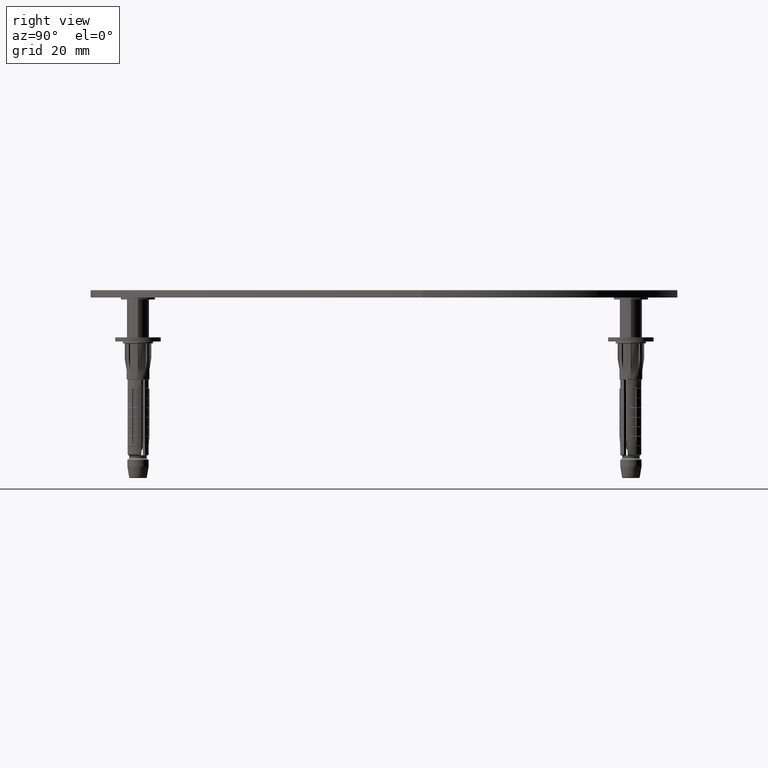
[diagram: clean part render]
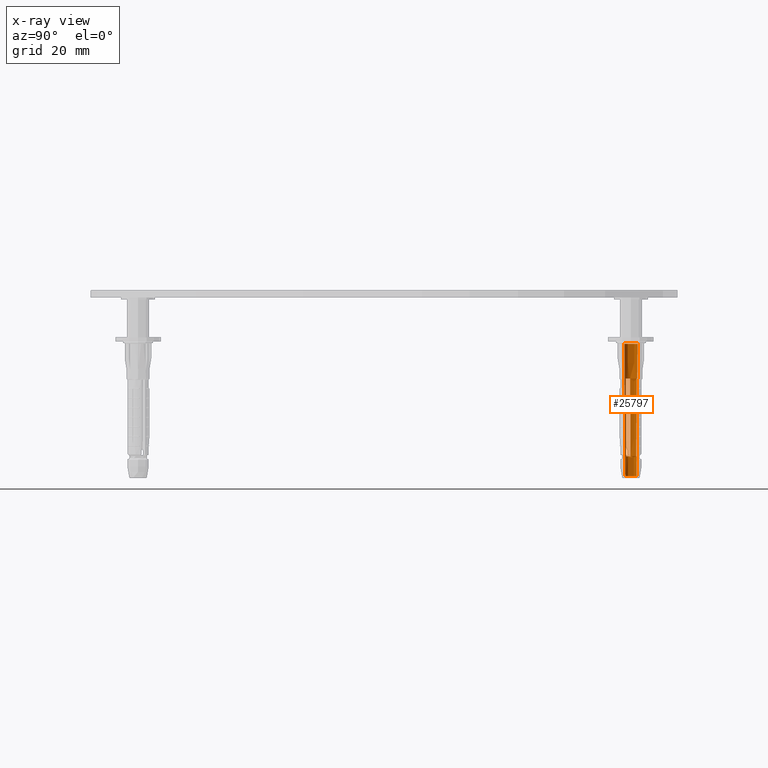
[diagram: x-ray — body ghosted, one internal face saturated and labeled with its STEP entity id]
A machine part, right view, then the same camera in x-ray: the body is ghosted and one INTERNAL B-rep face — a face not visible from any outside direction — is saturated and labeled: STEP entity #25797.
In plain terms, the highlighted conical surface has half-angle 0.401 deg.
Its self-contained STEP definition (entity closure, byte-faithful):
#411 = CARTESIAN_POINT ( 'NONE',  ( 1.836970198721029934E-16, 1.500000000000000000, -35.75000000000000000 ) ) ;
#661 = EDGE_CURVE ( 'NONE', #5708, #35858, #10260, .T. ) ;
#897 = AXIS2_PLACEMENT_3D ( 'NONE', #6023, #27391, #3202 ) ;
#962 = ORIENTED_EDGE ( 'NONE', *, *, #32297, .T. ) ;
#993 = CIRCLE ( 'NONE', #897, 1.681830407055966425 ) ;
#1470 = VERTEX_POINT ( 'NONE', #8237 ) ;
#1724 = EDGE_CURVE ( 'NONE', #9531, #27841, #3053, .T. ) ;
#1904 = DIRECTION ( 'NONE',  ( 0.000000000000000000, -0.006992836012750656971, 0.9999755498233438011 ) ) ;
#2013 = CARTESIAN_POINT ( 'NONE',  ( 0.6452325289770389771, -1.397914218517826157, -30.08158984277008585 ) ) ;
#2674 = CARTESIAN_POINT ( 'NONE',  ( 1.599003518319578987, 0.1736583543094187554, -20.24795912438024814 ) ) ;
#2736 = ORIENTED_EDGE ( 'NONE', *, *, #5259, .T. ) ;
#2937 = CARTESIAN_POINT ( 'NONE',  ( 1.666526010379683731, 0.2083499647477308481, -10.08157587699704649 ) ) ;
#2938 = CARTESIAN_POINT ( 'NONE',  ( 0.000000000000000000, 3.433350391091640607E-16, -9.748251790996814492 ) ) ;
#2979 = LINE ( 'NONE', #411, #29708 ) ;
#3031 = VERTEX_POINT ( 'NONE', #11512 ) ;
#3053 = LINE ( 'NONE', #36978, #23088 ) ;
#3202 = DIRECTION ( 'NONE',  ( -1.776356839400250465E-15, -1.000000000000000000, 0.000000000000000000 ) ) ;
#3253 = CARTESIAN_POINT ( 'NONE',  ( 0.9027115561000608190, 1.267324053805257256, -27.74832246951416082 ) ) ;
#3386 = CIRCLE ( 'NONE', #24115, 1.538473763699323094 ) ;
#4185 = DIRECTION ( 'NONE',  ( 0.000000000000000000, 1.712792726080124458E-19, 1.000000000000000000 ) ) ;
#4724 = CARTESIAN_POINT ( 'NONE',  ( 0.000000000000000000, -6.123233995736444329E-18, -35.75000000000000000 ) ) ;
#4959 = CARTESIAN_POINT ( 'NONE',  ( 0.6529438566827530099, -1.549908977365538787, -9.748251790996814492 ) ) ;
#5259 = EDGE_CURVE ( 'NONE', #29606, #3031, #28714, .T. ) ;
#5265 = EDGE_CURVE ( 'NONE', #27841, #29606, #3386, .T. ) ;
#5385 = DIRECTION ( 'NONE',  ( 0.000000000000000000, 1.712792726080124458E-19, 1.000000000000000000 ) ) ;
#5708 = VERTEX_POINT ( 'NONE', #9846 ) ;
#5759 = DIRECTION ( 'NONE',  ( 0.000000000000000000, 6.803593328596413297E-18, 1.000000000000000000 ) ) ;
#6023 = CARTESIAN_POINT ( 'NONE',  ( 0.000000000000000000, 3.433350391091640607E-16, -9.748251790996814492 ) ) ;
#6074 = DIRECTION ( 'NONE',  ( 8.563754239977431897E-19, 0.006992836012750656971, 0.9999755498233438011 ) ) ;
#6116 = VERTEX_POINT ( 'NONE', #11631 ) ;
#6214 = FACE_OUTER_BOUND ( 'NONE', #23349, .T. ) ;
#7004 = CARTESIAN_POINT ( 'NONE',  ( 0.9948955139307371631, 1.327005492811487386, -13.08168407891747087 ) ) ;
#7264 = CARTESIAN_POINT ( 'NONE',  ( 0.8880129610593886502, 1.257744870701107631, -30.08158984277008585 ) ) ;
#8229 = CIRCLE ( 'NONE', #30391, 1.745783028158170325 ) ;
#8237 = CARTESIAN_POINT ( 'NONE',  ( 0.000000000000000000, -1.681830407055966203, -9.748251790996814492 ) ) ;
#8298 = CARTESIAN_POINT ( 'NONE',  ( 0.6461790473723990624, -1.415433166775063034, -27.74832246951416082 ) ) ;
#8302 = EDGE_CURVE ( 'NONE', #31300, #9531, #29854, .T. ) ;
#9161 = ORIENTED_EDGE ( 'NONE', *, *, #19365, .T. ) ;
#9531 = VERTEX_POINT ( 'NONE', #16568 ) ;
#9846 = CARTESIAN_POINT ( 'NONE',  ( 1.532126853353173113, 0.1396023883222116124, -30.24825179099680739 ) ) ;
#9938 = DIRECTION ( 'NONE',  ( 0.000000000000000000, -1.000000000000000000, 0.000000000000000000 ) ) ;
#10032 = CARTESIAN_POINT ( 'NONE',  ( 1.015788619610740406, 1.340420455815019229, -9.748251790996814492 ) ) ;
#10260 = CIRCLE ( 'NONE', #22212, 1.538473763699323094 ) ;
#11160 = EDGE_CURVE ( 'NONE', #31300, #37635, #2979, .T. ) ;
#11191 = CARTESIAN_POINT ( 'NONE',  ( 0.6472510597482427075, -1.435442561835776898, -25.08173108936442475 ) ) ;
#11477 = DIRECTION ( 'NONE',  ( 0.000000000000000000, -1.000000000000000000, 0.000000000000000000 ) ) ;
#11512 = CARTESIAN_POINT ( 'NONE',  ( 0.6529438566827530099, -1.549908977365538787, -9.748251790996814492 ) ) ;
#11631 = CARTESIAN_POINT ( 'NONE',  ( 0.000000000000000000, -1.745783028158170547, -0.6030269733816054911 ) ) ;
#12314 = DIRECTION ( 'NONE',  ( 0.000000000000000000, -0.006992836012750656971, 0.9999755498233438011 ) ) ;
#13439 = VERTEX_POINT ( 'NONE', #36412 ) ;
#13507 = DIRECTION ( 'NONE',  ( -0.000000000000000000, -1.712792726080124458E-19, -1.000000000000000000 ) ) ;
#13860 = CARTESIAN_POINT ( 'NONE',  ( 0.6456409658520689820, -1.405425853955954318, -29.08161813890516356 ) ) ;
#14137 = CARTESIAN_POINT ( 'NONE',  ( 0.6492984556952973163, -1.475339807804667336, -19.74854737969049623 ) ) ;
#14614 = ORIENTED_EDGE ( 'NONE', *, *, #661, .T. ) ;
#14667 = CARTESIAN_POINT ( 'NONE',  ( 1.532126853353173113, 0.1396023883222116124, -30.24825179099680739 ) ) ;
#15589 = DIRECTION ( 'NONE',  ( 1.776356839400250465E-15, 1.000000000000000000, 0.000000000000000000 ) ) ;
#16421 = LINE ( 'NONE', #38266, #34560 ) ;
#16568 = CARTESIAN_POINT ( 'NONE',  ( 0.000000000000000000, -1.501736026510467337, -35.50174820900318196 ) ) ;
#17291 = B_SPLINE_CURVE_WITH_KNOTS ( 'NONE', 3,
 ( #36680, #7264, #25282, #21495, #28604, #31653, #3253, #34568, #18473, #19281, #30734, #7004, #10032 ),
 .UNSPECIFIED., .F., .F.,
 ( 4, 3, 3, 3, 4 ),
 ( 0.000000000000000000, 0.0005000000000004143925, 0.002500000000050580685, 0.01050000000305951336, 0.02050057427464647627 ),
 .UNSPECIFIED. ) ;
#17498 = CARTESIAN_POINT ( 'NONE',  ( 0.000000000000000000, -5.180898564425945676E-18, -30.24825179099682870 ) ) ;
#17522 = ORIENTED_EDGE ( 'NONE', *, *, #38513, .T. ) ;
#18154 = CARTESIAN_POINT ( 'NONE',  ( 1.667629327064346967, 0.2089192303041016996, -9.914913834507210311 ) ) ;
#18373 = CARTESIAN_POINT ( 'NONE',  ( 0.000000000000000000, -1.538473763699322872, -30.24825179099682870 ) ) ;
#18473 = CARTESIAN_POINT ( 'NONE',  ( 0.9362772196692720206, 1.289140595316773386, -22.41513938176526111 ) ) ;
#18870 = CARTESIAN_POINT ( 'NONE',  ( 2.137967597439677086E-16, 1.745783028158170547, -0.6030269733816054911 ) ) ;
#19281 = CARTESIAN_POINT ( 'NONE',  ( 0.9530325249256442754, 1.299978861172466083, -19.74854737969049623 ) ) ;
#19365 = EDGE_CURVE ( 'NONE', #1470, #6116, #16421, .T. ) ;
#19565 = FACE_BOUND ( 'NONE', #30756, .T. ) ;
#19647 = ORIENTED_EDGE ( 'NONE', *, *, #25305, .T. ) ;
#20034 = CARTESIAN_POINT ( 'NONE',  ( 0.6482898947594840644, -1.455410154876639606, -22.41513938176526111 ) ) ;
#20231 = AXIS2_PLACEMENT_3D ( 'NONE', #4724, #4185, #38528 ) ;
#20297 = DIRECTION ( 'NONE',  ( 0.000000000000000000, 1.000000000000000000, 0.000000000000000000 ) ) ;
#20362 = ORIENTED_EDGE ( 'NONE', *, *, #22916, .T. ) ;
#20800 = CARTESIAN_POINT ( 'NONE',  ( 1.665422525302646894, 0.2077807250073455680, -10.24823791846003118 ) ) ;
#20919 = CARTESIAN_POINT ( 'NONE',  ( 1.616773400997852717, 0.1827488338190830786, -17.58136715940376860 ) ) ;
#21455 = DIRECTION ( 'NONE',  ( 5.329070518200751394E-15, -1.000000000000000000, 0.000000000000000000 ) ) ;
#21495 = CARTESIAN_POINT ( 'NONE',  ( 0.8901133631146178615, 1.259114848031045009, -29.74826594235975463 ) ) ;
#22212 = AXIS2_PLACEMENT_3D ( 'NONE', #24039, #5759, #15589 ) ;
#22916 = EDGE_CURVE ( 'NONE', #6116, #37635, #8229, .T. ) ;
#23088 = VECTOR ( 'NONE', #12314, 1000.000000000000000 ) ;
#23349 = EDGE_LOOP ( 'NONE', ( #23783, #34024, #32409, #39212, #2736, #17522, #9161, #20362 ) ) ;
#23359 = CARTESIAN_POINT ( 'NONE',  ( 0.6453687631197588814, -1.400418208720784152, -29.74826594235975463 ) ) ;
#23651 = CARTESIAN_POINT ( 'NONE',  ( 0.000000000000000000, -5.588095458173432147E-19, -0.6030269733816054911 ) ) ;
#23679 = ORIENTED_EDGE ( 'NONE', *, *, #33640, .T. ) ;
#23746 = CARTESIAN_POINT ( 'NONE',  ( 1.576789889387851584, 0.1622946023761522027, -23.58139049783190799 ) ) ;
#23783 = ORIENTED_EDGE ( 'NONE', *, *, #11160, .F. ) ;
#23921 = AXIS2_PLACEMENT_3D ( 'NONE', #31812, #13507, #9938 ) ;
#24039 = CARTESIAN_POINT ( 'NONE',  ( 0.000000000000000000, -5.180898564425945676E-18, -30.24825179099682870 ) ) ;
#24115 = AXIS2_PLACEMENT_3D ( 'NONE', #17498, #29644, #20297 ) ;
#24624 = CARTESIAN_POINT ( 'NONE',  ( 0.8869626413926015029, 1.257059582663057284, -30.24825179099680739 ) ) ;
#25282 = CARTESIAN_POINT ( 'NONE',  ( 0.8890632014594700427, 1.258429958756367206, -29.91492789322138179 ) ) ;
#25305 = EDGE_CURVE ( 'NONE', #35858, #13439, #17291, .T. ) ;
#25797 = ADVANCED_FACE ( 'NONE', ( #6214, #19565 ), #39037, .F. ) ;
#26718 = CARTESIAN_POINT ( 'NONE',  ( 0.6451642119605712766, -1.396661970985268786, -30.24825179099680739 ) ) ;
#27386 = CARTESIAN_POINT ( 'NONE',  ( 1.652172560847955829, 0.2009510954124484050, -12.24818236635587709 ) ) ;
#27391 = DIRECTION ( 'NONE',  ( -0.000000000000000000, -1.712792726080124458E-19, -1.000000000000000000 ) ) ;
#27519 = VERTEX_POINT ( 'NONE', #30525 ) ;
#27635 = DIRECTION ( 'NONE',  ( -0.000000000000000000, -1.712792726080124458E-19, -1.000000000000000000 ) ) ;
#27841 = VERTEX_POINT ( 'NONE', #18373 ) ;
#28604 = CARTESIAN_POINT ( 'NONE',  ( 0.8943140097352603179, 1.261854405129790191, -29.08161813890516356 ) ) ;
#28714 = B_SPLINE_CURVE_WITH_KNOTS ( 'NONE', 3,
 ( #26718, #2013, #32422, #23359, #13860, #35207, #8298, #11191, #20034, #14137, #35476, #35593, #4959 ),
 .UNSPECIFIED., .F., .F.,
 ( 4, 3, 3, 3, 4 ),
 ( 0.000000000000000000, 0.0005000000000004143925, 0.002500000000050580685, 0.01050000000305951336, 0.02050057427464647627 ),
 .UNSPECIFIED. ) ;
#29036 = CIRCLE ( 'NONE', #33985, 1.681830407055966647 ) ;
#29606 = VERTEX_POINT ( 'NONE', #30310 ) ;
#29644 = DIRECTION ( 'NONE',  ( 0.000000000000000000, 6.803593328596413297E-18, 1.000000000000000000 ) ) ;
#29708 = VECTOR ( 'NONE', #6074, 1000.000000000000000 ) ;
#29854 = CIRCLE ( 'NONE', #23921, 1.501736026510467337 ) ;
#30017 = CARTESIAN_POINT ( 'NONE',  ( 1.656591950557989357, 0.2032272201278825796, -11.58153423375303603 ) ) ;
#30310 = CARTESIAN_POINT ( 'NONE',  ( 0.6451642119605712766, -1.396661970985268786, -30.24825179099680739 ) ) ;
#30391 = AXIS2_PLACEMENT_3D ( 'NONE', #23651, #5385, #11477 ) ;
#30525 = CARTESIAN_POINT ( 'NONE',  ( 1.668732476293493638, 0.2094885215505198628, -9.748251790996814492 ) ) ;
#30734 = CARTESIAN_POINT ( 'NONE',  ( 0.9739778592488662623, 1.313527471499640331, -16.41511596006032647 ) ) ;
#30756 = EDGE_LOOP ( 'NONE', ( #14614, #19647, #23679, #962 ) ) ;
#30924 = B_SPLINE_CURVE_WITH_KNOTS ( 'NONE', 3,
 ( #36235, #18154, #2937, #20800, #32947, #30017, #27386, #33331, #20919, #2674, #23746, #35979, #14667 ),
 .UNSPECIFIED., .F., .F.,
 ( 4, 3, 3, 3, 4 ),
 ( 0.000000000000000000, 0.0005000000000002581589, 0.002500000000033156256, 0.01050000000240637263, 0.02050057427441492885 ),
 .UNSPECIFIED. ) ;
#31300 = VERTEX_POINT ( 'NONE', #35169 ) ;
#31653 = CARTESIAN_POINT ( 'NONE',  ( 0.8985133965385434518, 1.264590781935484465, -28.41497031443465815 ) ) ;
#31812 = CARTESIAN_POINT ( 'NONE',  ( 0.000000000000000000, -6.080713609550873326E-18, -35.50174820900318196 ) ) ;
#32297 = EDGE_CURVE ( 'NONE', #27519, #5708, #30924, .T. ) ;
#32409 = ORIENTED_EDGE ( 'NONE', *, *, #1724, .T. ) ;
#32422 = CARTESIAN_POINT ( 'NONE',  ( 0.6453007124366823000, -1.399166297412006710, -29.91492789322138179 ) ) ;
#32947 = CARTESIAN_POINT ( 'NONE',  ( 1.661008584994464243, 0.2055037660457863791, -10.91488608431727592 ) ) ;
#33331 = CARTESIAN_POINT ( 'NONE',  ( 1.634495002005344366, 0.1918465965494355885, -14.91477489714101168 ) ) ;
#33640 = EDGE_CURVE ( 'NONE', #13439, #27519, #993, .T. ) ;
#33985 = AXIS2_PLACEMENT_3D ( 'NONE', #2938, #27635, #21455 ) ;
#34024 = ORIENTED_EDGE ( 'NONE', *, *, #8302, .T. ) ;
#34560 = VECTOR ( 'NONE', #1904, 1000.000000000000000 ) ;
#34568 = CARTESIAN_POINT ( 'NONE',  ( 0.9195041943490761538, 1.278257141286266441, -25.08173108936442475 ) ) ;
#35169 = CARTESIAN_POINT ( 'NONE',  ( 1.988531907734992781E-16, 1.501736026510467337, -35.50174820900318196 ) ) ;
#35207 = CARTESIAN_POINT ( 'NONE',  ( 0.6459110442784851136, -1.410430818010761866, -28.41497031443465815 ) ) ;
#35476 = CARTESIAN_POINT ( 'NONE',  ( 0.6505592292629955864, -1.500253304582922942, -16.41511596006032647 ) ) ;
#35593 = CARTESIAN_POINT ( 'NONE',  ( 0.6517727107708675138, -1.525107535580936924, -13.08168407891747087 ) ) ;
#35858 = VERTEX_POINT ( 'NONE', #24624 ) ;
#35979 = CARTESIAN_POINT ( 'NONE',  ( 1.554500871815585716, 0.1509422293871669485, -26.91482140879552176 ) ) ;
#36235 = CARTESIAN_POINT ( 'NONE',  ( 1.668732476293493638, 0.2094885215505198628, -9.748251790996814492 ) ) ;
#36412 = CARTESIAN_POINT ( 'NONE',  ( 1.015788619610740406, 1.340420455815019229, -9.748251790996814492 ) ) ;
#36680 = CARTESIAN_POINT ( 'NONE',  ( 0.8869626413926015029, 1.257059582663057284, -30.24825179099680739 ) ) ;
#36978 = CARTESIAN_POINT ( 'NONE',  ( 0.000000000000000000, -1.500000000000000000, -35.75000000000000000 ) ) ;
#37635 = VERTEX_POINT ( 'NONE', #18870 ) ;
#38266 = CARTESIAN_POINT ( 'NONE',  ( 0.000000000000000000, -1.500000000000000000, -35.75000000000000000 ) ) ;
#38513 = EDGE_CURVE ( 'NONE', #3031, #1470, #29036, .T. ) ;
#38528 = DIRECTION ( 'NONE',  ( 0.000000000000000000, -1.000000000000000000, 0.000000000000000000 ) ) ;
#39037 = CONICAL_SURFACE ( 'NONE', #20231, 1.500000000000000000, 0.006992893005333328423 ) ;
#39212 = ORIENTED_EDGE ( 'NONE', *, *, #5265, .T. ) ;